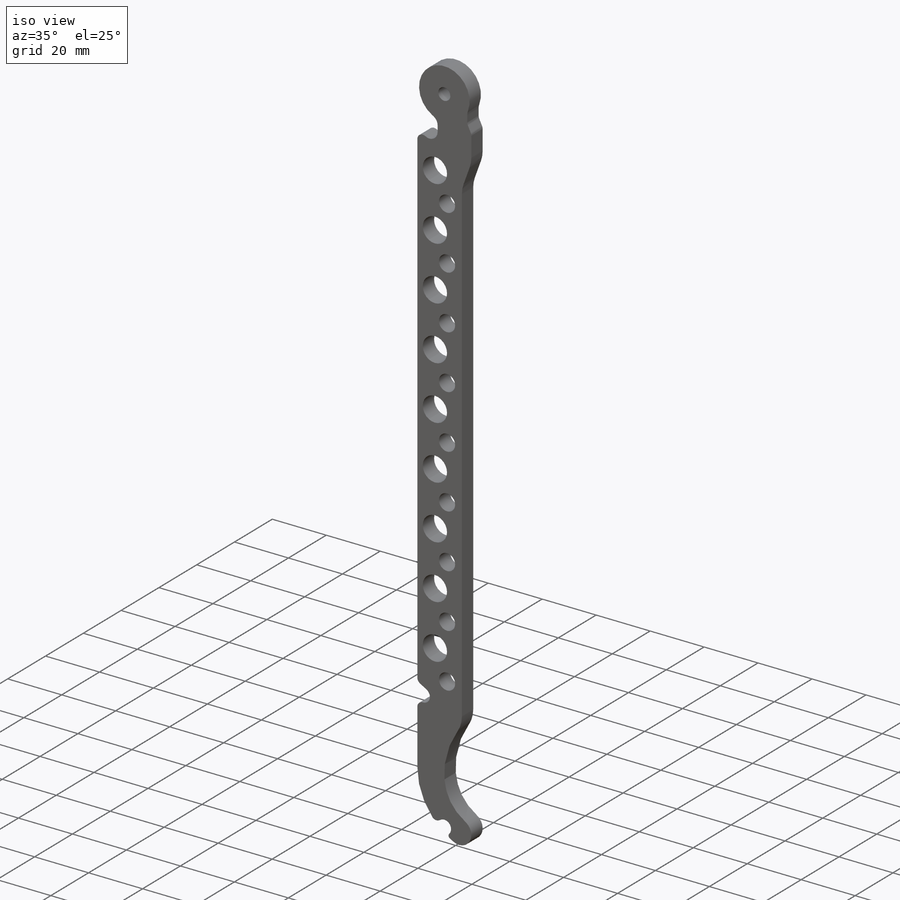
[diagram: iso view]
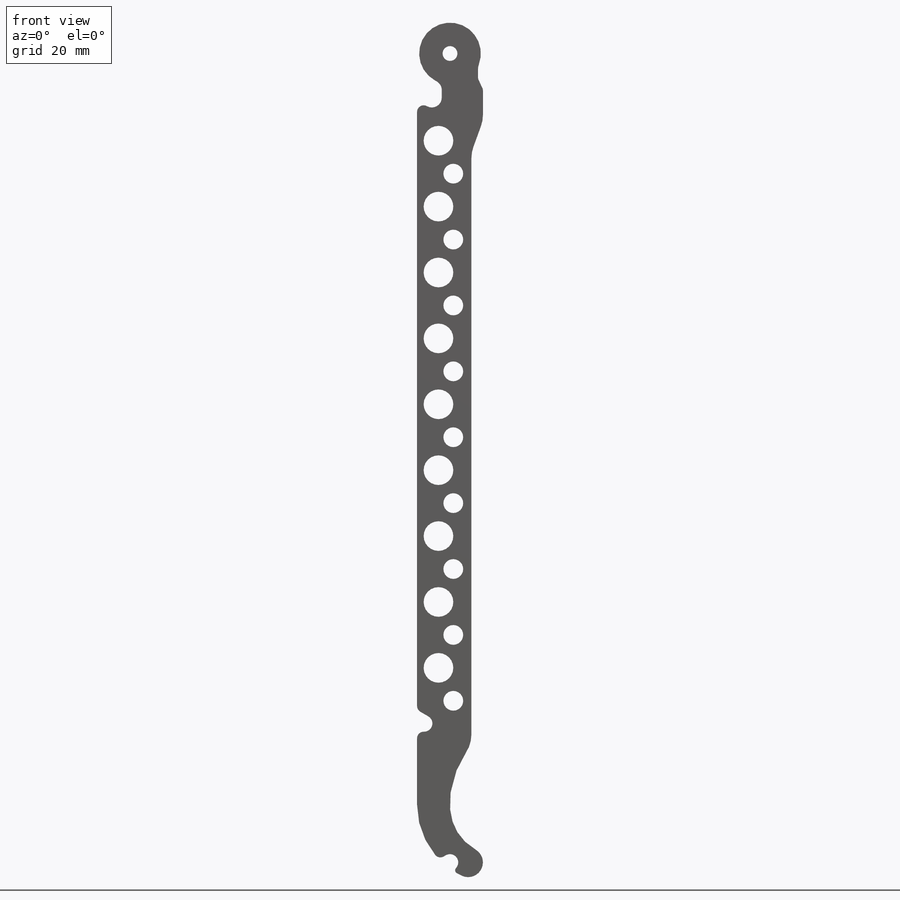
[diagram: front view]
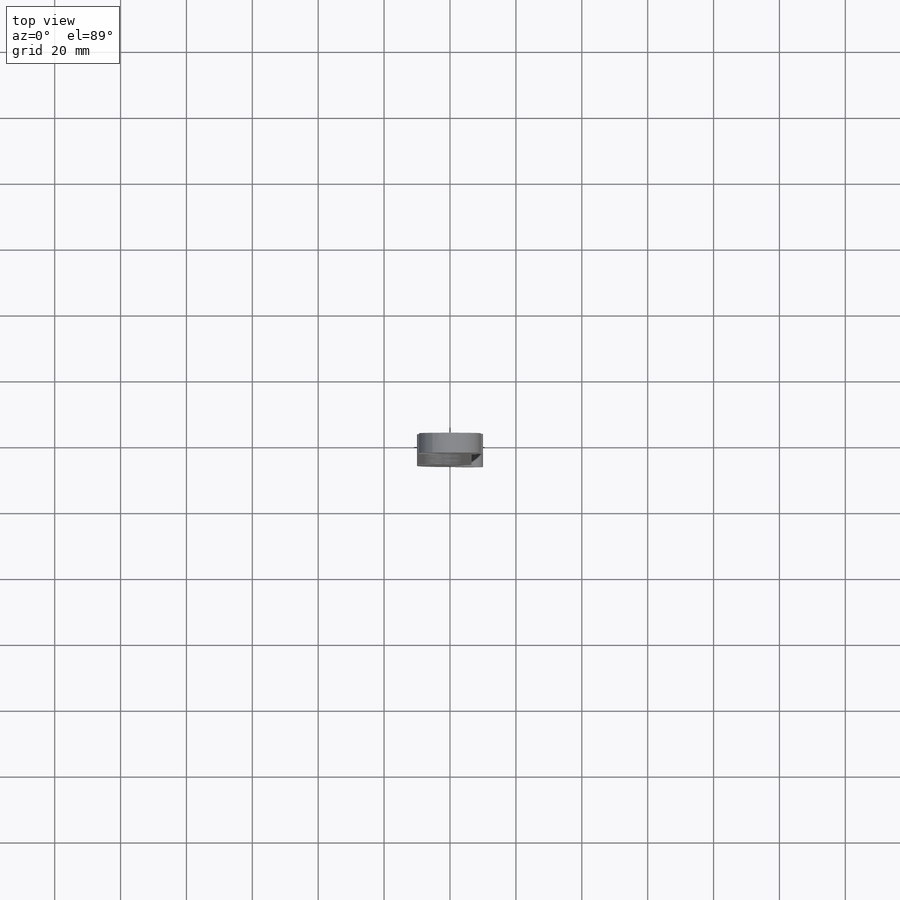
[diagram: top view]
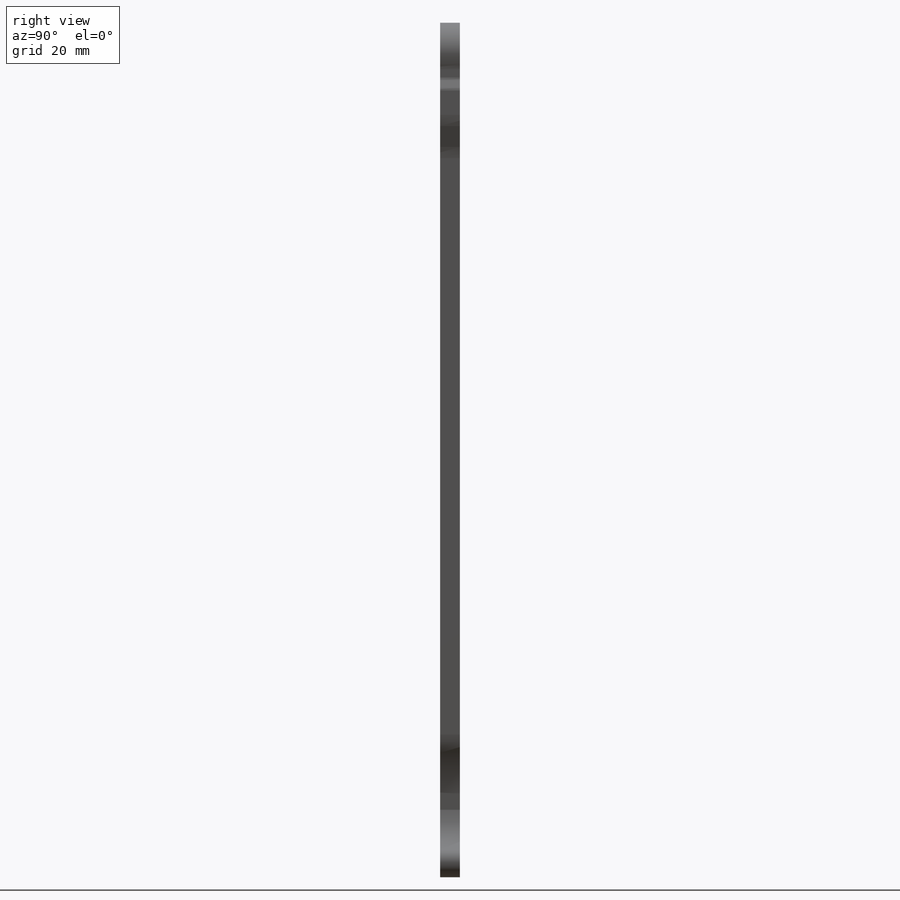
[diagram: right view]
SOLIDWORKS PART (.sldprt)
format: sldprt  version: not decoded by parser v0  size: 548,352 bytes
history: native  units: mm
features: sketch x8, cut_extrude x5, fillet x4, plane x3, material x1, extrude x1, hole x1 (+8 scaffold rows collapsed)
feature tree (31):
  scaffold x8  (default folders/planes/origin — collapsed)
  material  "Сплав 2024"
  plane  "Спереди"
  plane  "Сверху"
  plane  "Справа"
  sketch  "Эскиз1"  dims[c1.D1=20.0mm c1.D3=5.0mm c1.D4=9.0mm c1.D5=22.0mm c1.D10=5.0mm c1.D2=250.0mm c1.D6=40.0mm c1.D7=7.0mm c1.D8=24.0mm c2.D7=3.5mm c2.D9=~9.204439mm c3.D9=30.0deg c3.D3=~274.709222mm c4.D3=60.0deg c4.D11=30.0mm c4.D12=3.5mm c5.D12=~149.941877deg c6.D12=~304.084502mm c7.D12=20.0deg]
  extrude  "Бобышка-Вытянуть1"  Depth=6mm
  sketch  "Эскиз2"  dims[c1.D1=5.0mm c1.D2=15.0mm c1.D3=5.0mm c2.D1=5.0mm c2.D2=~227.975612mm c3.D2=90.0deg c4.D2=~227.975612mm c5.D2=30.0deg c5.D3=5.0mm c6.D2=~6.818686mm c7.D2=60.0deg]
  cut_extrude  "Вырез-Вытянуть1"  [1 undecoded]
  hole  "Отверстие с зазором M41"  [1 undecoded]
  sketch  "Эскиз5"
  sketch  "Эскиз4"  dims[hole-wizard template sketch: 60 standard entries collapsed; hole parameters kept: c18.Глубина сквозного отверстия=6.0mm]
  sketch  "Эскиз6"  dims[c1.D2=12.0mm c1.D3=~227.975612mm c2.D3=45.0deg c3.D3=~7.071068mm c3.D2=~14.065727mm c4.D3=~14.065727mm c4.D2=12.0mm c5.D3=4.0mm c5.D4=7.5mm c5.D5=1.5mm c5.D6=~23.245655mm c6.D6=100.0deg c6.D2=~22.674436mm c7.D2=~98.380544deg c7.D1=8.0mm]
  cut_extrude  "Вырез-Вытянуть2"  [1 undecoded]
  sketch  "Эскиз10"  dims[D2=9.0mm D3=9.0mm D4=8.0mm D1=1.5mm]
  cut_extrude  "Вырез-Вытянуть5"  Depth=10mm
  sketch  "Эскиз9"  dims[c1.D3=6.0mm c1.D5=9.0mm c1.D1=~6.666667mm c1.D2=~6.666667mm c2.D3=~180.805015mm c2.D1=5.5mm c2.D2=6.5mm c2.D6=10.0mm c2.D4=9.0 c2.D7=9.0]
  cut_extrude  "Вырез-Вытянуть4"  [1 undecoded]
  sketch  "Эскиз11"  dims[c1.D1=8.0mm c1.D2=26.0mm c2.D1=0.0mm c2.D2=0.0mm c2.D3=7.5mm c2.D4=1.5mm c2.D5=3.0mm c2.D6=~4.692433mm]
  cut_extrude  "Вырез-Вытянуть6"  [1 undecoded]
  fillet  "Скругление4"  Radius=2mm
  fillet  "Скругление5"  Radius=10mm
  fillet  "Скругление6"  Radius=1mm
  fillet  "Скругление7"  Radius=3mm
decode coverage: 13 of 19 modeling features carry decoded parameters
note: ~ marks probable driven/reference dimensions
note: 5 parameter values undecoded
summary: no parameter record found for 5 features
note: suppression state not decoded; provenance and decode notes live in map.json
